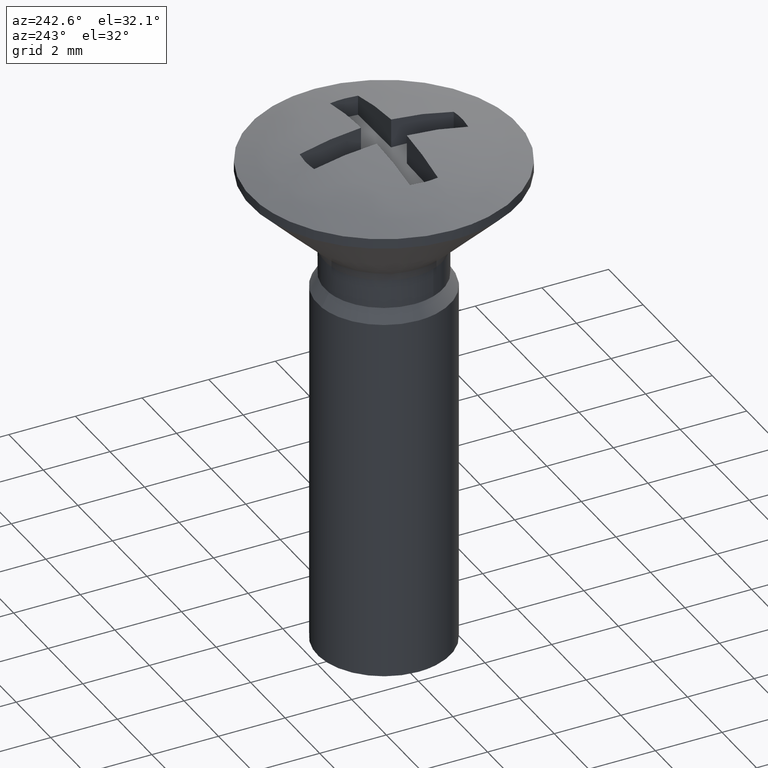
[diagram: clean part render]
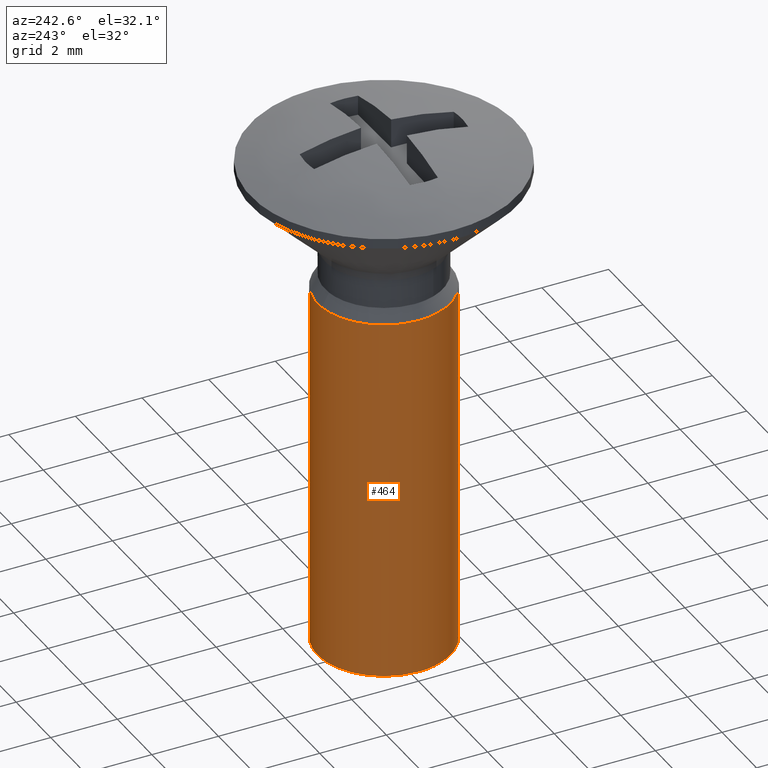
[diagram: same view with one face highlighted and labeled with its STEP entity id]
A machine part, auxiliary view. The second image highlights one B-rep face of the part: STEP entity #464.
In plain terms, the highlighted face is a freeform B-spline surface patch.
Its self-contained STEP definition (entity closure, byte-faithful):
#282=CARTESIAN_POINT('',(1.872287157552654,0.703235948784903,-3.951800000000000));
#283=VERTEX_POINT('',#282);
#299=CARTESIAN_POINT('',(0.122097079072118,-1.996269596843831,-3.951800000000837));
#300=VERTEX_POINT('',#299);
#314=CARTESIAN_POINT('',(0.122095105456574,-1.996269717553126,-15.0));
#315=VERTEX_POINT('',#314);
#316=CARTESIAN_POINT('',(0.122097079072118,-1.996269596843831,-3.951800000000837));
#317=CARTESIAN_POINT('',(0.122095105456574,-1.996269717553126,-15.0));
#318=QUASI_UNIFORM_CURVE('',1,(#316,#317),.UNSPECIFIED.,.F.,.U.);
#319=EDGE_CURVE('',#300,#315,#318,.T.);
#336=CARTESIAN_POINT('',(1.872288059860095,0.703233546482770,-15.0));
#337=VERTEX_POINT('',#336);
#351=CARTESIAN_POINT('',(1.872287157552654,0.703235948784903,-3.951800000000000));
#352=CARTESIAN_POINT('',(1.872288059860095,0.703233546482770,-15.0));
#353=QUASI_UNIFORM_CURVE('',1,(#351,#352),.UNSPECIFIED.,.F.,.U.);
#354=EDGE_CURVE('',#283,#337,#353,.T.);
#359=CARTESIAN_POINT('',(0.122097079069714,-1.996269596843733,-3.675595000000000));
#360=CARTESIAN_POINT('',(-1.874172517774020,-2.118366675913447,-3.675594999999999));
#361=CARTESIAN_POINT('',(-1.996269596843733,-0.122097079069714,-3.675595000000000));
#362=CARTESIAN_POINT('',(-2.118366675913447,1.874172517774020,-3.675594999999999));
#363=CARTESIAN_POINT('',(-0.122097079069714,1.996269596843733,-3.675595000000000));
#364=CARTESIAN_POINT('',(1.352739163606131,2.086474445738684,-3.675594999999999));
#365=CARTESIAN_POINT('',(1.872287157553314,0.703235948783144,-3.675594999999999));
#366=CARTESIAN_POINT('',(0.122097079069714,-1.996269596843733,-15.283110125000000));
#367=CARTESIAN_POINT('',(-1.874172517774020,-2.118366675913447,-15.283110125000009));
#368=CARTESIAN_POINT('',(-1.996269596843733,-0.122097079069714,-15.283110125000000));
#369=CARTESIAN_POINT('',(-2.118366675913447,1.874172517774020,-15.283110125000009));
#370=CARTESIAN_POINT('',(-0.122097079069714,1.996269596843733,-15.283110125000000));
#371=CARTESIAN_POINT('',(1.352739163606131,2.086474445738684,-15.283110125000002));
#372=CARTESIAN_POINT('',(1.872287157553314,0.703235948783144,-15.283110125000000));
#380=(BOUNDED_SURFACE()B_SPLINE_SURFACE(2,1,((#359,#366),(#360,#367),(#361,#368),(#362,#369),(#363,#370),(#364,#371),(#365,#372)),.UNSPECIFIED.,.F.,.F.,.U.)B_SPLINE_SURFACE_WITH_KNOTS((3,2,2,3),(2,2),(0.0,3.313708498984759,6.627416997969518,9.278383797157325),(0.0,11.607515125000001),.UNSPECIFIED.)GEOMETRIC_REPRESENTATION_ITEM()RATIONAL_B_SPLINE_SURFACE(((1.0,1.0),(0.707106781186548,0.707106781186548),(1.0,1.0),(0.707106781186548,0.707106781186548),(1.0,1.0),(0.765685424949238,0.765685424949238),(0.906274169979695,0.906274169979695)))REPRESENTATION_ITEM('')SURFACE());
#381=CARTESIAN_POINT('',(-0.236068469331041,1.986019052727022,-3.951800000003045));
#382=VERTEX_POINT('',#381);
#383=CARTESIAN_POINT('',(-0.236068469331041,1.986019052727022,-3.951800000003046));
#384=CARTESIAN_POINT('',(-0.118448239321319,2.000000000000000,-3.951800000000000));
#385=CARTESIAN_POINT('',(0.0,2.0,-3.951800000000000));
#386=CARTESIAN_POINT('',(1.385219191386065,2.000000000000000,-3.951799999999999));
#387=CARTESIAN_POINT('',(1.872287157552654,0.703235948784903,-3.951800000000000));
#395=(BOUNDED_CURVE()B_SPLINE_CURVE(2,(#383,#384,#385,#386,#387),.UNSPECIFIED.,.F.,.U.)B_SPLINE_CURVE_WITH_KNOTS((3,2,3),(0.229562473512697,0.250000000000000,0.440284170898613),.UNSPECIFIED.)CURVE()GEOMETRIC_REPRESENTATION_ITEM()RATIONAL_B_SPLINE_CURVE((0.956026754182109,0.976055948330195,1.0,0.777068226785024,0.893499554635403))REPRESENTATION_ITEM(''));
#396=EDGE_CURVE('',#382,#283,#395,.T.);
#397=ORIENTED_EDGE('',*,*,#396,.T.);
#398=ORIENTED_EDGE('',*,*,#354,.T.);
#399=CARTESIAN_POINT('',(-2.0,0.0,-15.0));
#400=VERTEX_POINT('',#399);
#401=CARTESIAN_POINT('',(-2.0,0.0,-15.0));
#402=CARTESIAN_POINT('',(-2.000000000000000,2.000000000000000,-14.999999999999995));
#403=CARTESIAN_POINT('',(0.0,2.0,-15.0));
#404=CARTESIAN_POINT('',(1.385221089977450,2.000000000000000,-15.000000000000007));
#405=CARTESIAN_POINT('',(1.872288059860095,0.703233546482770,-15.0));
#413=(BOUNDED_CURVE()B_SPLINE_CURVE(2,(#401,#402,#403,#404,#405),.UNSPECIFIED.,.F.,.U.)B_SPLINE_CURVE_WITH_KNOTS((3,2,3),(0.0,0.250000000000000,0.440284373561716),.UNSPECIFIED.)CURVE()GEOMETRIC_REPRESENTATION_ITEM()RATIONAL_B_SPLINE_CURVE((1.0,0.707106781186548,1.0,0.777067989350430,0.893499802647318))REPRESENTATION_ITEM(''));
#414=EDGE_CURVE('',#400,#337,#413,.T.);
#415=ORIENTED_EDGE('',*,*,#414,.F.);
#416=CARTESIAN_POINT('',(0.122095105456574,-1.996269717553126,-15.000000000000005));
#417=CARTESIAN_POINT('',(0.061104537023773,-2.000000000000000,-15.000000000000005));
#418=CARTESIAN_POINT('',(0.0,-2.0,-15.0));
#419=CARTESIAN_POINT('',(-2.000000000000000,-2.000000000000000,-14.999999999999995));
#420=CARTESIAN_POINT('',(-2.0,0.0,-15.0));
#428=(BOUNDED_CURVE()B_SPLINE_CURVE(2,(#416,#417,#418,#419,#420),.UNSPECIFIED.,.F.,.U.)B_SPLINE_CURVE_WITH_KNOTS((3,2,3),(0.739333132830478,0.750000000000000,1.0),.UNSPECIFIED.)CURVE()GEOMETRIC_REPRESENTATION_ITEM()RATIONAL_B_SPLINE_CURVE((0.976072407277123,0.987502987760252,1.0,0.707106781186548,1.0))REPRESENTATION_ITEM(''));
#429=EDGE_CURVE('',#315,#400,#428,.T.);
#430=ORIENTED_EDGE('',*,*,#429,.F.);
#431=ORIENTED_EDGE('',*,*,#319,.F.);
#432=CARTESIAN_POINT('',(-2.0,0.0,-3.951800000000000));
#433=VERTEX_POINT('',#432);
#434=CARTESIAN_POINT('',(0.122097079072118,-1.996269596843831,-3.951800000000838));
#435=CARTESIAN_POINT('',(0.061105526601969,-2.000000000000000,-3.951800000000000));
#436=CARTESIAN_POINT('',(0.0,-2.0,-3.951800000000000));
#437=CARTESIAN_POINT('',(-2.000000000000000,-2.000000000000000,-3.951800000000000));
#438=CARTESIAN_POINT('',(-2.0,0.0,-3.951800000000000));
#446=(BOUNDED_CURVE()B_SPLINE_CURVE(2,(#434,#435,#436,#437,#438),.UNSPECIFIED.,.F.,.U.)B_SPLINE_CURVE_WITH_KNOTS((3,2,3),(0.739332962241142,0.750000000000000,1.0),.UNSPECIFIED.)CURVE()GEOMETRIC_REPRESENTATION_ITEM()RATIONAL_B_SPLINE_CURVE((0.976072041671432,0.987502787902414,1.0,0.707106781186548,1.0))REPRESENTATION_ITEM(''));
#447=EDGE_CURVE('',#300,#433,#446,.T.);
#448=ORIENTED_EDGE('',*,*,#447,.T.);
#449=CARTESIAN_POINT('',(-2.0,0.0,-3.951800000000000));
#450=CARTESIAN_POINT('',(-2.000000000000000,1.776349051871541,-3.951800000000000));
#451=CARTESIAN_POINT('',(-0.236068469331041,1.986019052727022,-3.951800000003046));
#459=(BOUNDED_CURVE()B_SPLINE_CURVE(2,(#449,#450,#451),.UNSPECIFIED.,.F.,.U.)B_SPLINE_CURVE_WITH_KNOTS((3,3),(0.0,0.229562473512697),.UNSPECIFIED.)CURVE()GEOMETRIC_REPRESENTATION_ITEM()RATIONAL_B_SPLINE_CURVE((1.0,0.731050832856353,0.956026754182109))REPRESENTATION_ITEM(''));
#460=EDGE_CURVE('',#433,#382,#459,.T.);
#461=ORIENTED_EDGE('',*,*,#460,.T.);
#462=EDGE_LOOP('',(#397,#398,#415,#430,#431,#448,#461));
#463=FACE_OUTER_BOUND('',#462,.T.);
#464=ADVANCED_FACE('',(#463),#380,.T.);